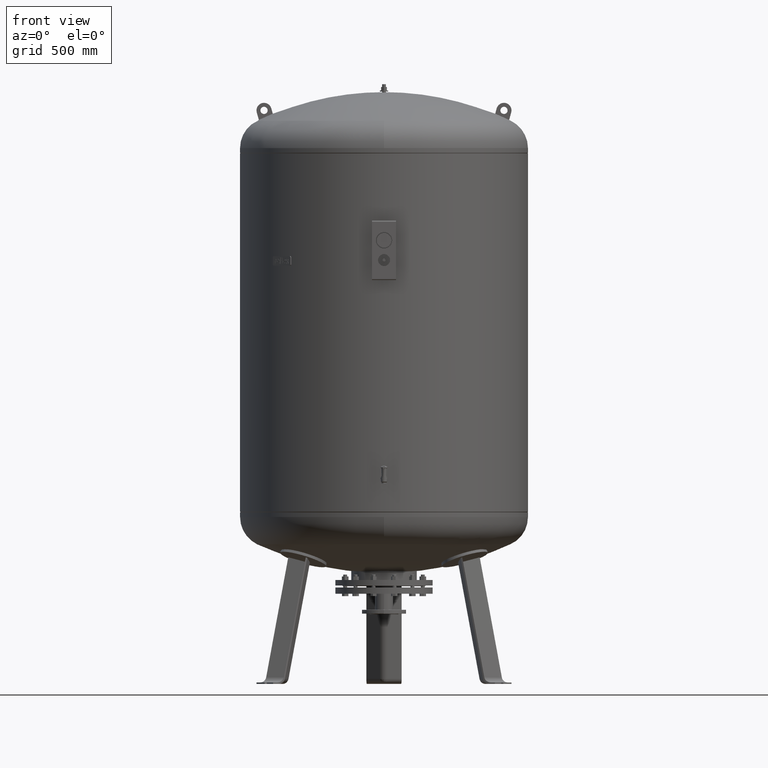
[diagram: clean part render]
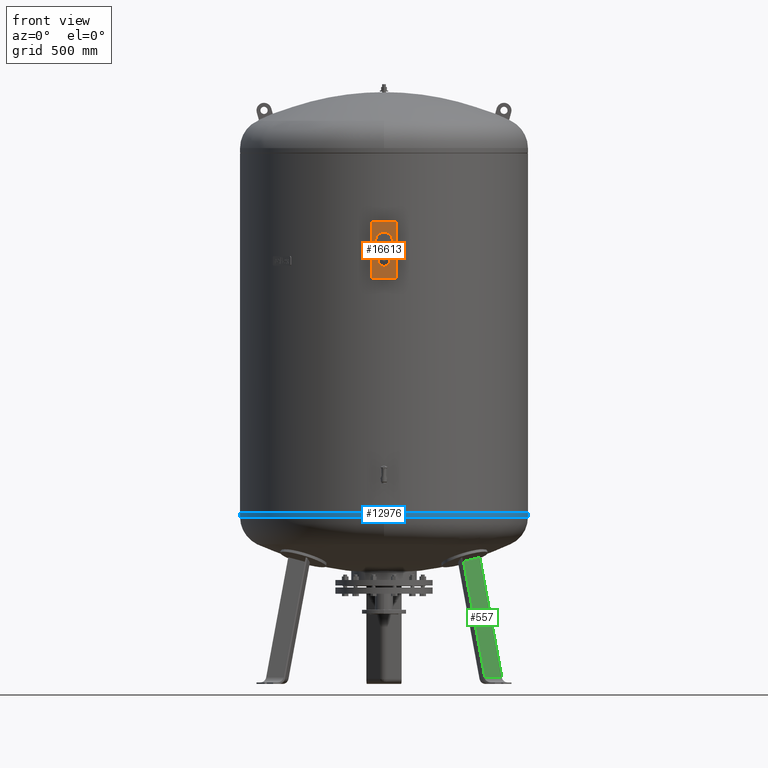
[diagram: same view with three faces highlighted in distinct colors, each labeled with its STEP entity id]
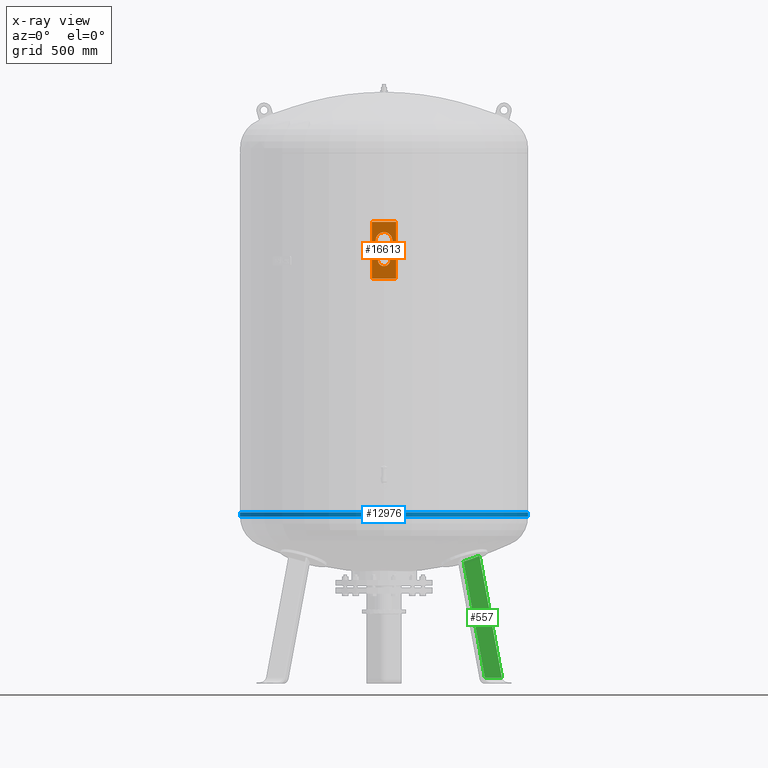
[diagram: x-ray of the same camera — body ghosted, the three highlighted faces saturated]
A machine part, front view with three faces highlighted in distinct colors.
The next image is the same camera in x-ray (body ghosted, the three faces saturated) — at least one of them is partly hidden behind the body in this view.
Their STEP definitions:

[orange] entity #16613 — the highlighted planar face has unit normal (0, -1, 0).
#16115=CARTESIAN_POINT('',(-34.500000000000028,-666.0,1848.183333333333200));
#16116=VERTEX_POINT('',#16115);
#16132=CARTESIAN_POINT('',(34.499999999999972,-666.0,1848.183333333333200));
#16133=VERTEX_POINT('',#16132);
#16140=CARTESIAN_POINT('',(-2.724839E-014,-666.0,1848.183333333333200));
#16141=DIRECTION('',(0.0,1.0,0.0));
#16142=DIRECTION('',(-1.0,0.0,0.0));
#16143=AXIS2_PLACEMENT_3D('',#16140,#16141,#16142);
#16144=CIRCLE('',#16143,34.500000000000000);
#16145=EDGE_CURVE('',#16116,#16133,#16144,.T.);
#16157=CARTESIAN_POINT('',(-25.000000000000011,-666.0,1765.849999999999900));
#16158=VERTEX_POINT('',#16157);
#16174=CARTESIAN_POINT('',(24.999999999999989,-666.0,1765.849999999999900));
#16175=VERTEX_POINT('',#16174);
#16182=CARTESIAN_POINT('',(-1.212400E-014,-666.0,1765.849999999999900));
#16183=DIRECTION('',(0.0,1.0,0.0));
#16184=DIRECTION('',(-1.0,0.0,0.0));
#16185=AXIS2_PLACEMENT_3D('',#16182,#16183,#16184);
#16186=CIRCLE('',#16185,25.0);
#16187=EDGE_CURVE('',#16158,#16175,#16186,.T.);
#16198=CARTESIAN_POINT('',(-1.212400E-014,-666.0,1765.849999999999900));
#16199=DIRECTION('',(0.0,1.0,0.0));
#16200=DIRECTION('',(-1.0,0.0,0.0));
#16201=AXIS2_PLACEMENT_3D('',#16198,#16199,#16200);
#16202=CIRCLE('',#16201,25.0);
#16203=EDGE_CURVE('',#16175,#16158,#16202,.T.);
#16222=CARTESIAN_POINT('',(-2.724839E-014,-666.0,1848.183333333333200));
#16223=DIRECTION('',(0.0,1.0,0.0));
#16224=DIRECTION('',(-1.0,0.0,0.0));
#16225=AXIS2_PLACEMENT_3D('',#16222,#16223,#16224);
#16226=CIRCLE('',#16225,34.500000000000000);
#16227=EDGE_CURVE('',#16133,#16116,#16226,.T.);
#16247=CARTESIAN_POINT('',(50.0,-666.0,1688.516666666666400));
#16248=VERTEX_POINT('',#16247);
#16330=CARTESIAN_POINT('',(49.999999999999957,-666.0,1925.516666666666700));
#16331=VERTEX_POINT('',#16330);
#16339=CARTESIAN_POINT('',(50.0,-666.0,1688.516666666666400));
#16340=DIRECTION('',(0.0,0.0,1.0));
#16341=VECTOR('',#16340,237.000000000000230);
#16342=LINE('',#16339,#16341);
#16343=EDGE_CURVE('',#16248,#16331,#16342,.T.);
#16562=CARTESIAN_POINT('',(-50.000000000000043,-666.0,1925.516666666666700));
#16563=VERTEX_POINT('',#16562);
#16571=CARTESIAN_POINT('',(49.999999999999957,-666.0,1925.516666666666700));
#16572=DIRECTION('',(-1.0,0.0,0.0));
#16573=VECTOR('',#16572,100.0);
#16574=LINE('',#16571,#16573);
#16575=EDGE_CURVE('',#16331,#16563,#16574,.T.);
#16582=CARTESIAN_POINT('',(-4.145429E-014,-666.0,1925.516666666666700));
#16583=DIRECTION('',(0.0,-1.0,0.0));
#16584=DIRECTION('',(1.0,0.0,0.0));
#16585=AXIS2_PLACEMENT_3D('',#16582,#16583,#16584);
#16586=PLANE('',#16585);
#16587=CARTESIAN_POINT('',(-50.0,-666.0,1688.516666666666400));
#16588=VERTEX_POINT('',#16587);
#16589=CARTESIAN_POINT('',(-50.000000000000043,-666.0,1925.516666666666700));
#16590=DIRECTION('',(0.0,0.0,-1.0));
#16591=VECTOR('',#16590,237.000000000000230);
#16592=LINE('',#16589,#16591);
#16593=EDGE_CURVE('',#16563,#16588,#16592,.T.);
#16594=ORIENTED_EDGE('',*,*,#16593,.T.);
#16595=CARTESIAN_POINT('',(50.0,-666.0,1688.516666666666400));
#16596=DIRECTION('',(-1.0,0.0,0.0));
#16597=VECTOR('',#16596,100.0);
#16598=LINE('',#16595,#16597);
#16599=EDGE_CURVE('',#16248,#16588,#16598,.T.);
#16600=ORIENTED_EDGE('',*,*,#16599,.F.);
#16601=ORIENTED_EDGE('',*,*,#16343,.T.);
#16602=ORIENTED_EDGE('',*,*,#16575,.T.);
#16603=EDGE_LOOP('',(#16594,#16600,#16601,#16602));
#16604=FACE_OUTER_BOUND('',#16603,.T.);
#16605=ORIENTED_EDGE('',*,*,#16203,.T.);
#16606=ORIENTED_EDGE('',*,*,#16187,.T.);
#16607=EDGE_LOOP('',(#16605,#16606));
#16608=FACE_BOUND('',#16607,.T.);
#16609=ORIENTED_EDGE('',*,*,#16227,.T.);
#16610=ORIENTED_EDGE('',*,*,#16145,.T.);
#16611=EDGE_LOOP('',(#16609,#16610));
#16612=FACE_BOUND('',#16611,.T.);
#16613=ADVANCED_FACE('',(#16604,#16608,#16612),#16586,.T.);

[blue] entity #12976 — the highlighted cylindrical surface (partial cylindrical patch) has radius 600 mm, axis along (-0, -0, 1).
#12824=CARTESIAN_POINT('',(-600.000000000000110,-4.684274E-014,715.0));
#12825=VERTEX_POINT('',#12824);
#12826=CARTESIAN_POINT('',(-600.0,-4.336858E-014,696.087542566272190));
#12827=VERTEX_POINT('',#12826);
#12828=CARTESIAN_POINT('',(-600.000000000000110,-4.684274E-014,715.0));
#12829=DIRECTION('',(0.0,0.0,-1.0));
#12830=VECTOR('',#12829,18.912457433727809);
#12831=LINE('',#12828,#12830);
#12832=EDGE_CURVE('',#12825,#12827,#12831,.T.);
#12834=CARTESIAN_POINT('',(599.999999999999890,2.663364E-014,715.000000000000110));
#12835=VERTEX_POINT('',#12834);
#12843=CARTESIAN_POINT('',(599.999999999999890,3.010780E-014,696.087542566272300));
#12844=VERTEX_POINT('',#12843);
#12845=CARTESIAN_POINT('',(599.999999999999890,2.663364E-014,715.000000000000110));
#12846=DIRECTION('',(0.0,0.0,-1.0));
#12847=VECTOR('',#12846,18.912457433727809);
#12848=LINE('',#12845,#12847);
#12849=EDGE_CURVE('',#12835,#12844,#12848,.T.);
#12875=CARTESIAN_POINT('',(-7.105427E-014,-600.0,696.087542566272190));
#12876=VERTEX_POINT('',#12875);
#12886=CARTESIAN_POINT('',(-3.551733E-014,-4.336858E-014,696.087542566272300));
#12887=DIRECTION('',(0.0,0.0,1.0));
#12888=DIRECTION('',(-1.0,0.0,0.0));
#12889=AXIS2_PLACEMENT_3D('',#12886,#12887,#12888);
#12890=CIRCLE('',#12889,600.0);
#12891=EDGE_CURVE('',#12827,#12876,#12890,.T.);
#12948=CARTESIAN_POINT('',(-3.551733E-014,-4.336858E-014,696.087542566272300));
#12949=DIRECTION('',(0.0,0.0,1.0));
#12950=DIRECTION('',(-1.0,0.0,0.0));
#12951=AXIS2_PLACEMENT_3D('',#12948,#12949,#12950);
#12952=CIRCLE('',#12951,600.0);
#12953=EDGE_CURVE('',#12876,#12844,#12952,.T.);
#12958=CARTESIAN_POINT('',(-3.693994E-014,-4.510566E-014,705.543771283136150));
#12959=DIRECTION('',(-1.504413E-016,-1.836970E-016,1.0));
#12960=DIRECTION('',(-1.0,0.0,0.0));
#12961=AXIS2_PLACEMENT_3D('',#12958,#12959,#12960);
#12962=CYLINDRICAL_SURFACE('',#12961,599.999999999999890);
#12963=ORIENTED_EDGE('',*,*,#12832,.T.);
#12964=ORIENTED_EDGE('',*,*,#12891,.T.);
#12965=ORIENTED_EDGE('',*,*,#12953,.T.);
#12966=ORIENTED_EDGE('',*,*,#12849,.F.);
#12967=CARTESIAN_POINT('',(-3.836254E-014,-4.684274E-014,715.0));
#12968=DIRECTION('',(0.0,0.0,1.0));
#12969=DIRECTION('',(-1.0,0.0,0.0));
#12970=AXIS2_PLACEMENT_3D('',#12967,#12968,#12969);
#12971=CIRCLE('',#12970,600.0);
#12972=EDGE_CURVE('',#12825,#12835,#12971,.T.);
#12973=ORIENTED_EDGE('',*,*,#12972,.F.);
#12974=EDGE_LOOP('',(#12963,#12964,#12965,#12966,#12973));
#12975=FACE_OUTER_BOUND('',#12974,.T.);
#12976=ADVANCED_FACE('',(#12975),#12962,.T.);

[green] entity #557 — the highlighted planar face has unit normal (0.3243, -0.9325, 0.1588).
#242=CARTESIAN_POINT('',(331.471886874801380,-172.742614659007020,510.149969666713160));
#243=VERTEX_POINT('',#242);
#261=CARTESIAN_POINT('',(397.884990698560900,-145.613083205598510,533.843746499036000));
#262=VERTEX_POINT('',#261);
#263=CARTESIAN_POINT('',(397.884990698560900,-145.613083205598510,533.843746499036000));
#264=CARTESIAN_POINT('',(384.619296430347730,-151.152545046034250,528.403592446426270));
#265=CARTESIAN_POINT('',(371.293373231930790,-156.647038447854700,523.350498082422290));
#266=CARTESIAN_POINT('',(351.152787533789480,-164.839591880331170,516.369477981931600));
#267=CARTESIAN_POINT('',(344.335298495004620,-167.593311024787170,514.120476420435810));
#268=CARTESIAN_POINT('',(335.506731719871940,-171.131433109522900,511.371950061965830));
#269=CARTESIAN_POINT('',(333.488976274067230,-171.938159054883100,510.754973838816850));
#270=CARTESIAN_POINT('',(331.471886874801380,-172.742614659007020,510.149969666713160));
#271=B_SPLINE_CURVE_WITH_KNOTS('',3,(#263,#264,#265,#266,#267,#268,#269,#270),.UNSPECIFIED.,.F.,.U.,(4,2,2,4),(536.144034177567730,540.433260676197730,542.629325785795340,543.280185670864850),.UNSPECIFIED.);
#272=EDGE_CURVE('',#262,#243,#271,.T.);
#497=CARTESIAN_POINT('',(491.178961512120280,-199.476382368576250,27.029948423057281));
#498=VERTEX_POINT('',#497);
#499=CARTESIAN_POINT('',(491.178961512120280,-199.476382368576250,27.029948423057281));
#500=DIRECTION('',(-0.180056805991956,0.103955845408880,0.978147600733805));
#501=VECTOR('',#500,518.136319810800960);
#502=LINE('',#499,#501);
#503=EDGE_CURVE('',#498,#262,#502,.T.);
#534=CARTESIAN_POINT('',(503.798934266855670,-206.762527035688460,-41.527282742766886));
#535=DIRECTION('',(0.324282864533176,-0.932535537409927,0.158802063077709));
#536=DIRECTION('',(-0.180056805991956,0.103955845408880,0.978147600733806));
#537=AXIS2_PLACEMENT_3D('',#534,#535,#536);
#538=PLANE('',#537);
#539=CARTESIAN_POINT('',(420.404321888330290,-224.087779953756920,27.029948423057284));
#540=VERTEX_POINT('',#539);
#541=CARTESIAN_POINT('',(420.404321888330290,-224.087779953756920,27.029948423057284));
#542=DIRECTION('',(-0.180056805991956,0.103955845408880,0.978147600733806));
#543=VECTOR('',#542,493.913209909444730);
#544=LINE('',#541,#543);
#545=EDGE_CURVE('',#540,#243,#544,.T.);
#546=ORIENTED_EDGE('',*,*,#545,.F.);
#547=CARTESIAN_POINT('',(491.178961512120280,-199.476382368576250,27.029948423057281));
#548=DIRECTION('',(-0.944521094592692,-0.328450760190052,4.741265E-017));
#549=VECTOR('',#548,74.931772333057637);
#550=LINE('',#547,#549);
#551=EDGE_CURVE('',#498,#540,#550,.T.);
#552=ORIENTED_EDGE('',*,*,#551,.F.);
#553=ORIENTED_EDGE('',*,*,#503,.T.);
#554=ORIENTED_EDGE('',*,*,#272,.T.);
#555=EDGE_LOOP('',(#546,#552,#553,#554));
#556=FACE_OUTER_BOUND('',#555,.T.);
#557=ADVANCED_FACE('',(#556),#538,.T.);